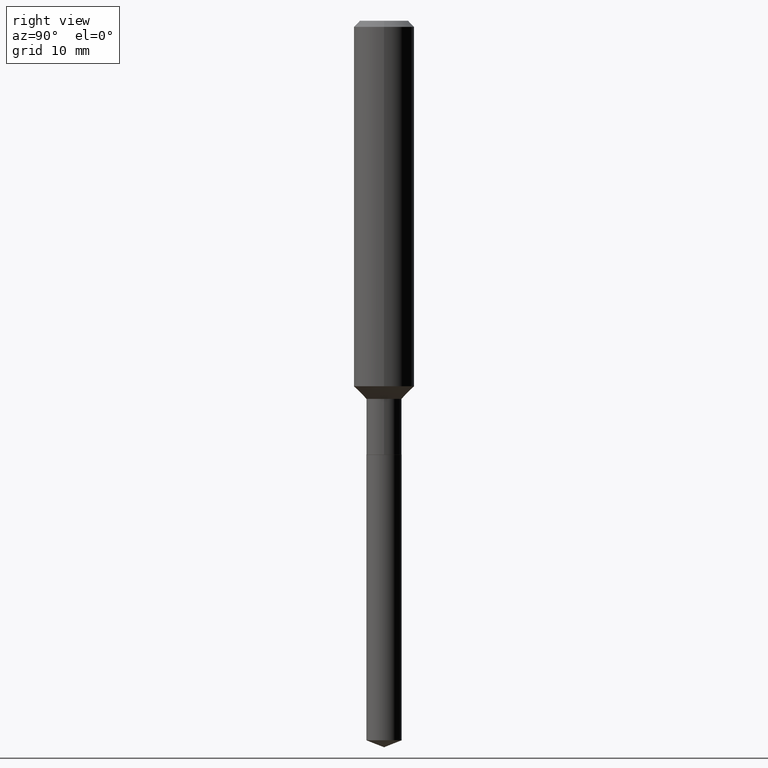
[diagram: clean part render]
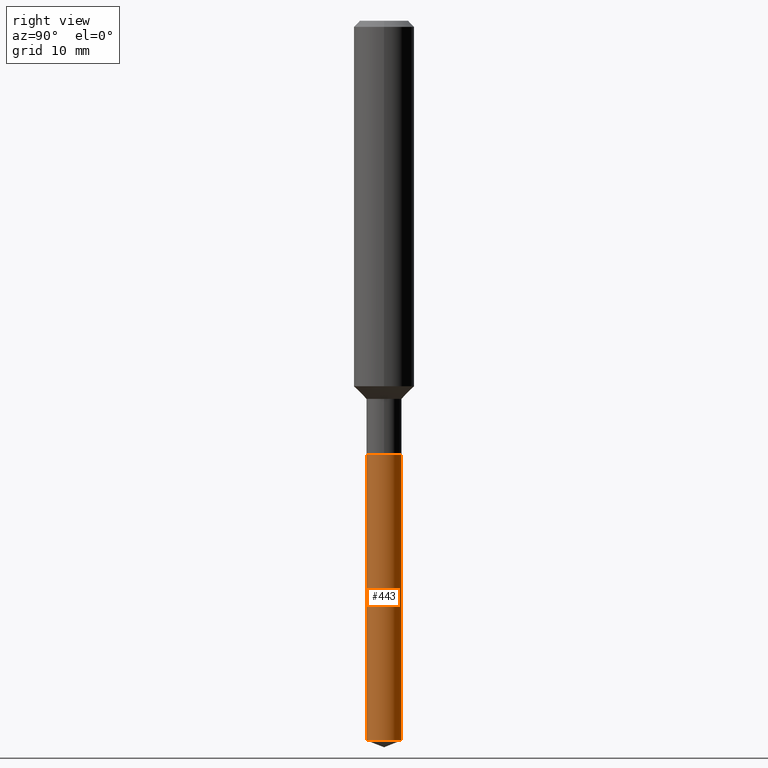
[diagram: same view with one face highlighted and labeled with its STEP entity id]
A machine part, right view. The second image highlights one B-rep face of the part: STEP entity #443.
In plain terms, the highlighted cylindrical surface (edge-blend (fillet) strip) has radius 1.7501 mm, axis along (-0, 0, 1).
Its self-contained STEP definition (entity closure, byte-faithful):
#16 = VECTOR ( 'NONE', #270, 39.37007874015748143 ) ;
#23 = ORIENTED_EDGE ( 'NONE', *, *, #422, .F. ) ;
#70 = CARTESIAN_POINT ( 'NONE',  ( -4.811261284925152062E-16, -0.06890000000000982838, -2.807459568230130653 ) ) ;
#72 = CARTESIAN_POINT ( 'NONE',  ( 4.895639449387776796E-16, 0.06889999999999020519, -2.807459568230130653 ) ) ;
#89 = EDGE_CURVE ( 'NONE', #473, #223, #449, .T. ) ;
#103 = DIRECTION ( 'NONE',  ( -6.982962677686265922E-15, -1.000000000000000000, 0.000000000000000000 ) ) ;
#105 = EDGE_CURVE ( 'NONE', #401, #200, #258, .T. ) ;
#106 = CARTESIAN_POINT ( 'NONE',  ( 4.139934141990817236E-29, -5.910728758527560286E-15, -1.692899999999999849 ) ) ;
#111 = AXIS2_PLACEMENT_3D ( 'NONE', #106, #174, #263 ) ;
#119 = CARTESIAN_POINT ( 'NONE',  ( -4.811261284925424219E-16, -0.06890000000000591485, -1.692899999999999627 ) ) ;
#143 = DIRECTION ( 'NONE',  ( -6.982962677686265922E-15, -1.000000000000000000, 3.964946289788480107E-15 ) ) ;
#166 = ORIENTED_EDGE ( 'NONE', *, *, #105, .T. ) ;
#172 = VECTOR ( 'NONE', #178, 39.37007874015748143 ) ;
#174 = DIRECTION ( 'NONE',  ( -2.440414050576406318E-29, 3.498720036573669606E-15, 1.000000000000000000 ) ) ;
#178 = DIRECTION ( 'NONE',  ( -2.440414050576406038E-29, 3.498720036573669211E-15, 1.000000000000000000 ) ) ;
#200 = VERTEX_POINT ( 'NONE', #390 ) ;
#202 = ORIENTED_EDGE ( 'NONE', *, *, #89, .F. ) ;
#209 = CIRCLE ( 'NONE', #394, 0.06890000000000001679 ) ;
#223 = VERTEX_POINT ( 'NONE', #119 ) ;
#258 = LINE ( 'NONE', #375, #172 ) ;
#261 = CYLINDRICAL_SURFACE ( 'NONE', #378, 0.06890000000000001679 ) ;
#263 = DIRECTION ( 'NONE',  ( -6.982962677686265922E-15, -1.000000000000000000, 3.964946289788480896E-15 ) ) ;
#270 = DIRECTION ( 'NONE',  ( -2.440414050576406038E-29, 3.498720036573669211E-15, 1.000000000000000000 ) ) ;
#295 = DIRECTION ( 'NONE',  ( -2.440414050576406318E-29, 3.498720036573669606E-15, 1.000000000000000000 ) ) ;
#328 = ORIENTED_EDGE ( 'NONE', *, *, #452, .T. ) ;
#332 = CIRCLE ( 'NONE', #111, 0.06890000000000000291 ) ;
#333 = CARTESIAN_POINT ( 'NONE',  ( 6.859920972504001083E-29, -9.810260651849216245E-15, -2.807459568230130653 ) ) ;
#336 = DIRECTION ( 'NONE',  ( -2.440414050576406318E-29, 3.498720036573669606E-15, 1.000000000000000000 ) ) ;
#344 = CARTESIAN_POINT ( 'NONE',  ( -4.811261284925424219E-16, -0.06890000000000592872, -1.692899999999999627 ) ) ;
#363 = EDGE_LOOP ( 'NONE', ( #328, #166, #23, #202 ) ) ;
#375 = CARTESIAN_POINT ( 'NONE',  ( 4.895639449387504639E-16, 0.06889999999999410485, -1.692900000000000071 ) ) ;
#378 = AXIS2_PLACEMENT_3D ( 'NONE', #410, #295, #143 ) ;
#390 = CARTESIAN_POINT ( 'NONE',  ( 4.895639449387778768E-16, 0.06889999999999410485, -1.692900000000000071 ) ) ;
#394 = AXIS2_PLACEMENT_3D ( 'NONE', #333, #336, #103 ) ;
#401 = VERTEX_POINT ( 'NONE', #72 ) ;
#410 = CARTESIAN_POINT ( 'NONE',  ( 4.139934141990817236E-29, -5.910728758527560286E-15, -1.692899999999999849 ) ) ;
#422 = EDGE_CURVE ( 'NONE', #223, #200, #332, .T. ) ;
#443 = ADVANCED_FACE ( 'NONE', ( #448 ), #261, .T. ) ;
#448 = FACE_OUTER_BOUND ( 'NONE', #363, .T. ) ;
#449 = LINE ( 'NONE', #344, #16 ) ;
#452 = EDGE_CURVE ( 'NONE', #473, #401, #209, .T. ) ;
#473 = VERTEX_POINT ( 'NONE', #70 ) ;